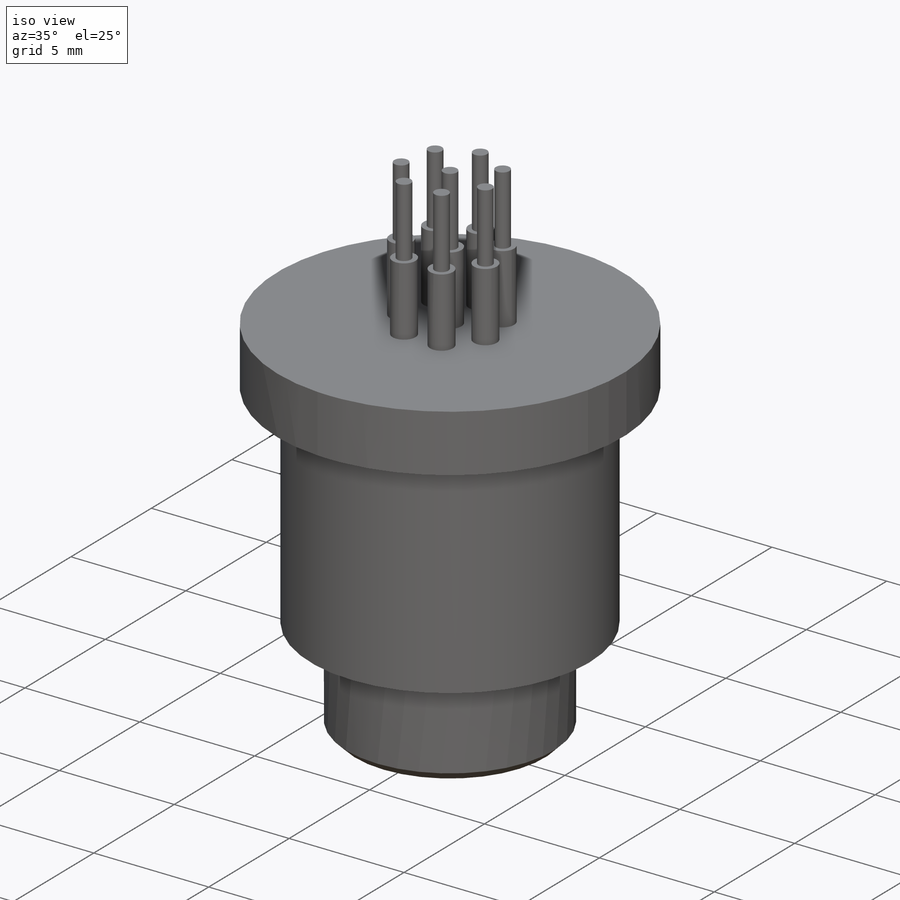
[diagram: iso view]
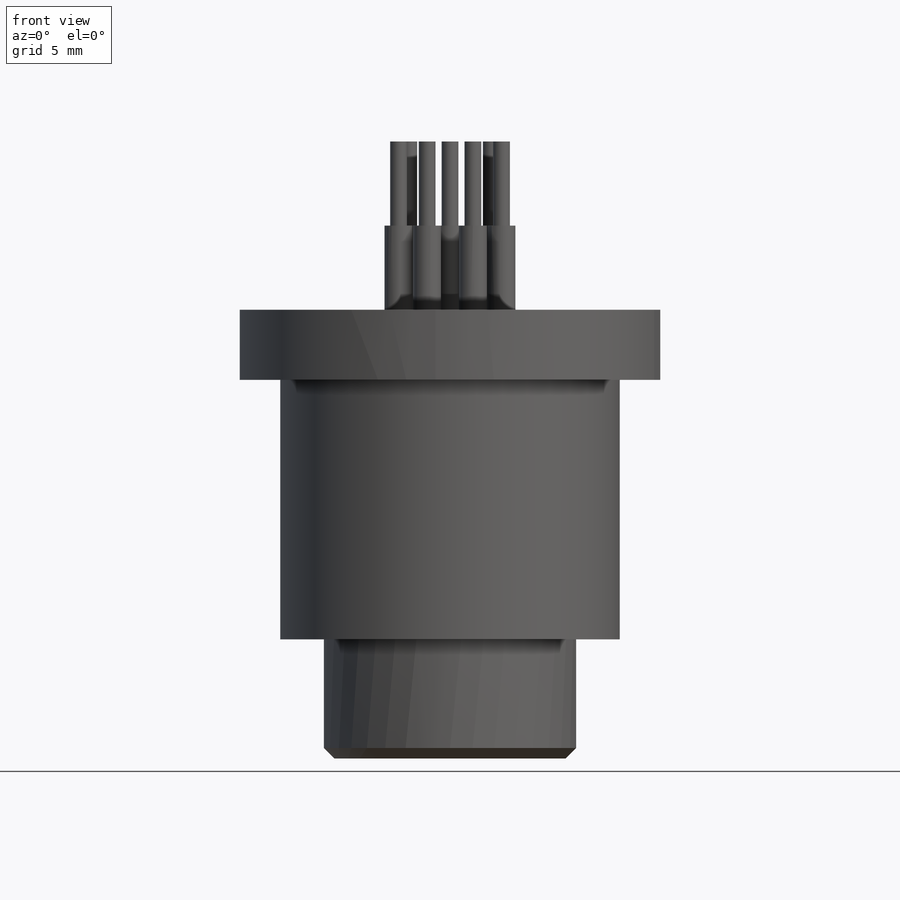
[diagram: front view]
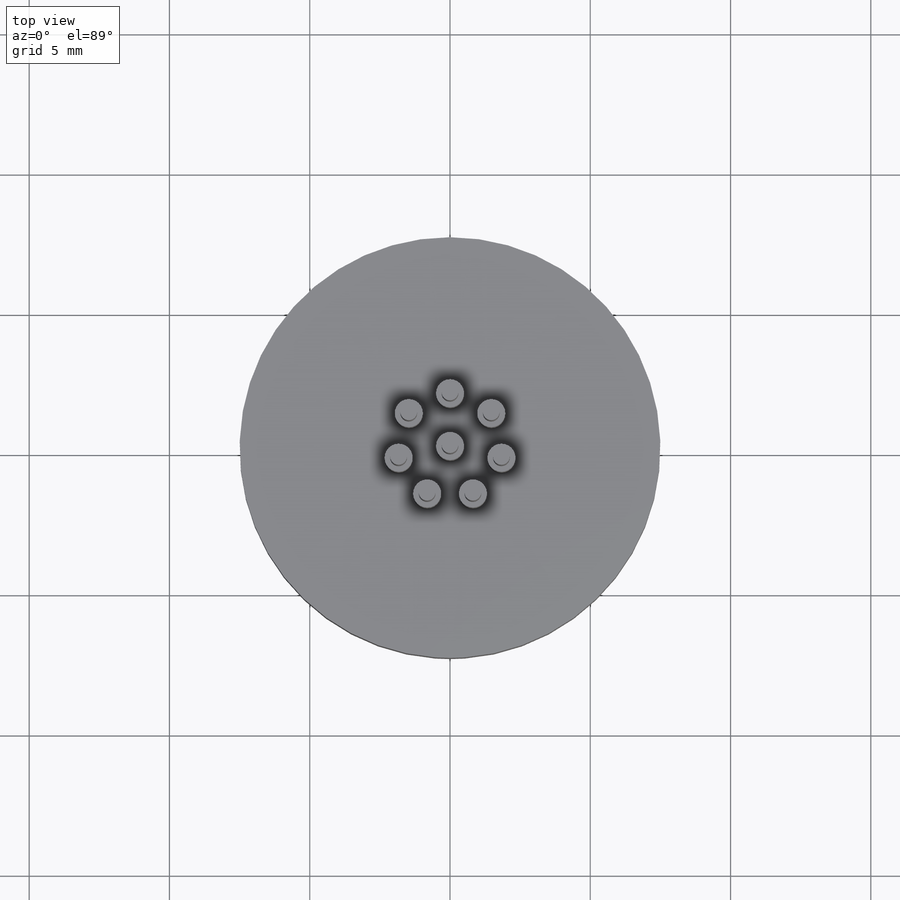
[diagram: top view]
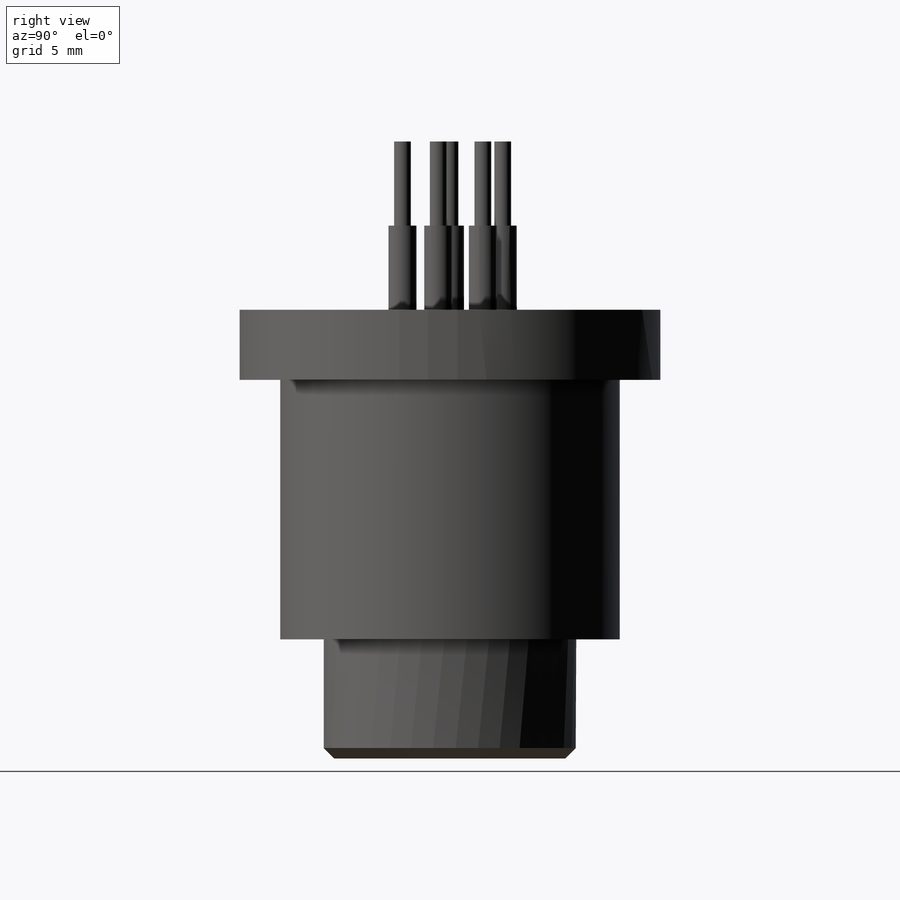
[diagram: right view]
SOLIDWORKS PART (.sldprt)
format: sldprt  version: not decoded by parser v0  size: 294,912 bytes
history: native  units: mm
features: sketch x9, extrude x8, chamfer x2, material x1, cut_extrude x1 (+13 scaffold rows collapsed)
feature tree (34):
  scaffold x13  (default folders/planes/origin — collapsed)
  material  "Material <not specified>"
  sketch  "Sketch1"  dims[D1=7.0mm D2=9.0mm]
  extrude  "Boss-Extrude1"  Depth=4.25mm
  sketch  "Sketch2"  dims[D1=107.95mm]
  extrude  "Boss-Extrude2"  Depth=1.3mm
  sketch  "Sketch3"  dims[D1=12.1mm]
  extrude  "Boss-Extrude3"  Depth=9.25mm
  sketch  "Sketch6"  dims[D1=15.0mm]
  extrude  "Boss-Extrude5"  Depth=2.5mm
  sketch  "Sketch10"  dims[D1=1.0mm D2=1.0mm D3=1.88mm]
  extrude  "Boss-Extrude7"  Depth=3mm
  sketch  "Sketch11"  dims[D1=0.6mm D2=0.6mm D3=0.6mm D4=0.6mm D5=0.6mm D6=0.6mm D7=0.6mm D8=0.6mm]
  extrude  "Boss-Extrude8"  Depth=3mm
  extrude  "Boss-Extrude9"  [1 undecoded]
  sketch  "Sketch11<3>"  dims[D1=3.0mm]
  chamfer  "Chamfer1"  Distance=0.375mm Angle=45deg
  chamfer  "Chamfer2"  Distance=0.375mm Angle=45deg
  sketch  "Sketch19"  dims[D1=6.25mm]
  extrude  "Boss-Extrude12"  Depth=0.375mm
  sketch  "Sketch20"  dims[D1=0.8mm D2=0.8mm D3=1.88mm D4=7.0]
  cut_extrude  "Cut-Extrude3"  [1 undecoded]
decode coverage: 18 of 20 modeling features carry decoded parameters
note: 2 parameter values undecoded
note: suppression state not decoded; provenance and decode notes live in map.json
